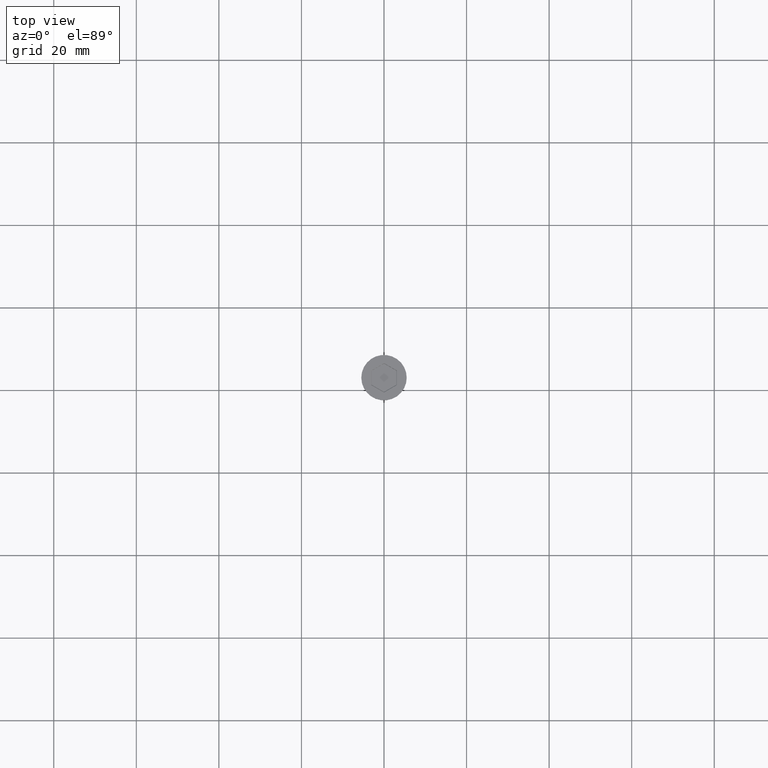
[diagram: clean part render]
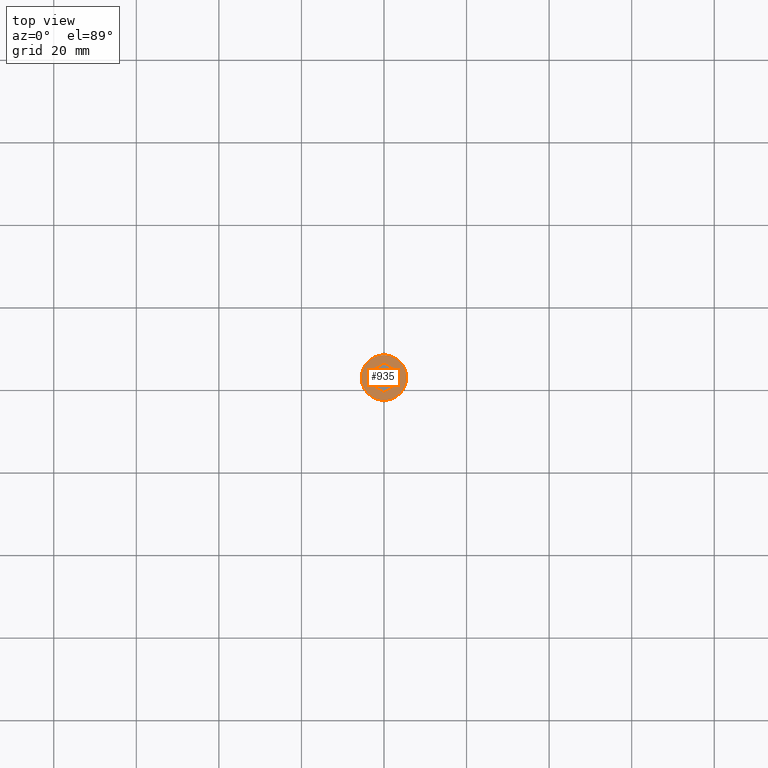
[diagram: same view with one face highlighted and labeled with its STEP entity id]
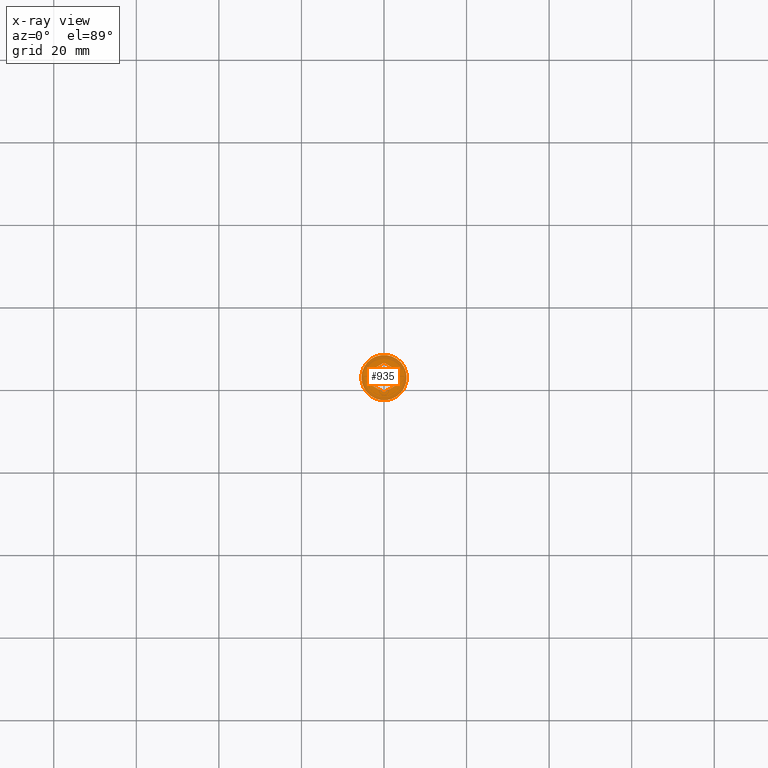
[diagram: x-ray of the same camera — body ghosted, the highlighted face saturated]
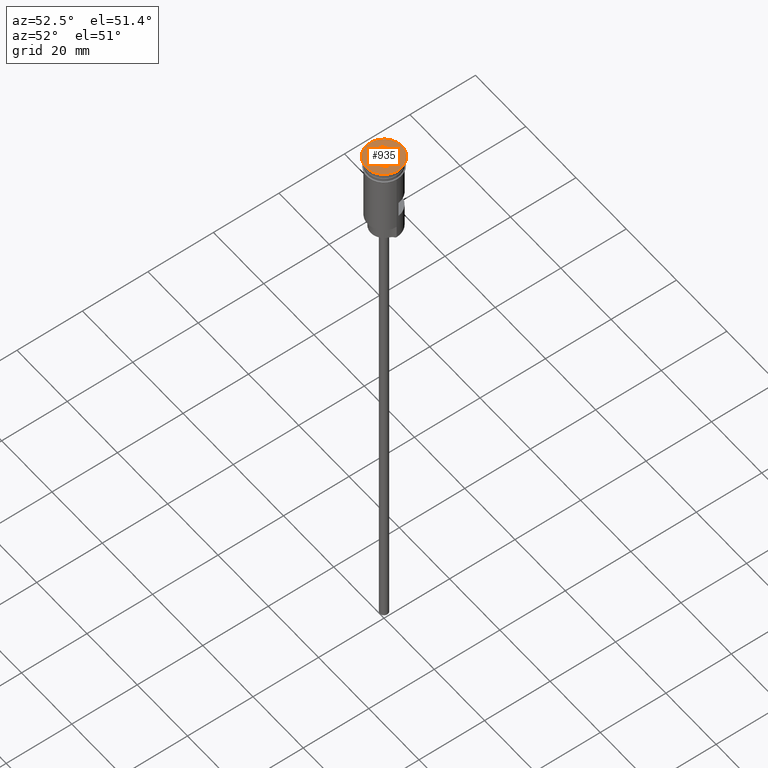
[diagram: same view with one face highlighted and labeled with its STEP entity id]
A machine part, top view. The second image highlights one B-rep face of the part: STEP entity #935.
The next image is the same camera in x-ray: the body ghosted, the highlighted face saturated — about 0% of this face is hidden behind the body in this view.
A second angle (auxiliary view) of the same face is appended — the face is thin or edge-on in the first view.
In plain terms, the highlighted planar face has unit normal (0, -0, 1).
Its self-contained STEP definition (entity closure, byte-faithful):
#25 = LINE ( 'NONE', #1150, #372 ) ;
#33 = DIRECTION ( 'NONE',  ( 0.8660254037844388186, -0.4999999999999997780, 0.000000000000000000 ) ) ;
#68 = EDGE_CURVE ( 'NONE', #468, #1204, #1472, .T. ) ;
#85 = DIRECTION ( 'NONE',  ( 1.000000000000000000, 0.000000000000000000, 0.000000000000000000 ) ) ;
#96 = EDGE_CURVE ( 'NONE', #1204, #952, #503, .T. ) ;
#99 = VECTOR ( 'NONE', #199, 1000.000000000000000 ) ;
#101 = DIRECTION ( 'NONE',  ( -0.000000000000000000, -0.000000000000000000, 1.000000000000000000 ) ) ;
#124 = EDGE_CURVE ( 'NONE', #1080, #1243, #270, .T. ) ;
#137 = ORIENTED_EDGE ( 'NONE', *, *, #68, .T. ) ;
#141 = ORIENTED_EDGE ( 'NONE', *, *, #96, .T. ) ;
#148 = CARTESIAN_POINT ( 'NONE',  ( -1.958864205101993824E-16, -3.579571668975658927, 0.000000000000000000 ) ) ;
#199 = DIRECTION ( 'NONE',  ( -0.8660254037844387076, 0.4999999999999998335, 0.000000000000000000 ) ) ;
#238 = VERTEX_POINT ( 'NONE', #148 ) ;
#242 = EDGE_CURVE ( 'NONE', #952, #1080, #25, .T. ) ;
#264 = CIRCLE ( 'NONE', #882, 5.500000000000000000 ) ;
#270 = LINE ( 'NONE', #1225, #1020 ) ;
#277 = EDGE_LOOP ( 'NONE', ( #137, #141, #1328, #338, #1348, #1424 ) ) ;
#338 = ORIENTED_EDGE ( 'NONE', *, *, #124, .T. ) ;
#356 = CARTESIAN_POINT ( 'NONE',  ( 3.099999999999982769, -1.789785834487828353, 0.000000000000000000 ) ) ;
#372 = VECTOR ( 'NONE', #33, 1000.000000000000114 ) ;
#377 = CARTESIAN_POINT ( 'NONE',  ( -3.099999999999983213, 1.732050807568876971, 0.000000000000000000 ) ) ;
#438 = EDGE_LOOP ( 'NONE', ( #648, #589 ) ) ;
#468 = VERTEX_POINT ( 'NONE', #585 ) ;
#489 = CARTESIAN_POINT ( 'NONE',  ( -0.04999999999999187039, 3.550704155516183125, 0.000000000000000000 ) ) ;
#503 = LINE ( 'NONE', #489, #1524 ) ;
#561 = EDGE_CURVE ( 'NONE', #238, #468, #1277, .T. ) ;
#581 = CARTESIAN_POINT ( 'NONE',  ( 3.099999999999983213, 1.789785834487831462, 0.000000000000000000 ) ) ;
#585 = CARTESIAN_POINT ( 'NONE',  ( -3.099999999999983213, -1.789785834487829241, 0.000000000000000000 ) ) ;
#589 = ORIENTED_EDGE ( 'NONE', *, *, #777, .T. ) ;
#607 = EDGE_CURVE ( 'NONE', #1243, #238, #820, .T. ) ;
#648 = ORIENTED_EDGE ( 'NONE', *, *, #800, .T. ) ;
#654 = DIRECTION ( 'NONE',  ( 0.000000000000000000, -0.000000000000000000, 1.000000000000000000 ) ) ;
#701 = CARTESIAN_POINT ( 'NONE',  ( 0.04999999999999141936, -3.550704155516182237, 0.000000000000000000 ) ) ;
#735 = VECTOR ( 'NONE', #1184, 1000.000000000000114 ) ;
#741 = DIRECTION ( 'NONE',  ( -0.000000000000000000, -0.000000000000000000, 1.000000000000000000 ) ) ;
#751 = DIRECTION ( 'NONE',  ( -1.251928832280966188E-16, -1.000000000000000000, 0.000000000000000000 ) ) ;
#752 = FACE_OUTER_BOUND ( 'NONE', #438, .T. ) ;
#777 = EDGE_CURVE ( 'NONE', #1581, #1268, #264, .T. ) ;
#780 = PLANE ( 'NONE',  #1444 ) ;
#800 = EDGE_CURVE ( 'NONE', #1268, #1581, #837, .T. ) ;
#820 = LINE ( 'NONE', #701, #735 ) ;
#837 = CIRCLE ( 'NONE', #1041, 5.500000000000000000 ) ;
#850 = CARTESIAN_POINT ( 'NONE',  ( 0.000000000000000000, 0.000000000000000000, 0.000000000000000000 ) ) ;
#867 = DIRECTION ( 'NONE',  ( 0.000000000000000000, 1.000000000000000000, 0.000000000000000000 ) ) ;
#882 = AXIS2_PLACEMENT_3D ( 'NONE', #850, #741, #85 ) ;
#935 = ADVANCED_FACE ( 'NONE', ( #1257, #752 ), #780, .T. ) ;
#944 = CARTESIAN_POINT ( 'NONE',  ( -3.049999999999991385, -1.818653347947305932, 0.000000000000000000 ) ) ;
#952 = VERTEX_POINT ( 'NONE', #1017 ) ;
#1017 = CARTESIAN_POINT ( 'NONE',  ( 6.103073414120078086E-16, 3.579571668975660259, 0.000000000000000000 ) ) ;
#1020 = VECTOR ( 'NONE', #751, 1000.000000000000000 ) ;
#1041 = AXIS2_PLACEMENT_3D ( 'NONE', #1078, #101, #1470 ) ;
#1078 = CARTESIAN_POINT ( 'NONE',  ( 0.000000000000000000, 0.000000000000000000, 0.000000000000000000 ) ) ;
#1080 = VERTEX_POINT ( 'NONE', #581 ) ;
#1103 = CARTESIAN_POINT ( 'NONE',  ( 5.500000000000000000, 0.000000000000000000, 0.000000000000000000 ) ) ;
#1137 = DIRECTION ( 'NONE',  ( 1.000000000000000000, 0.000000000000000000, 0.000000000000000000 ) ) ;
#1144 = CARTESIAN_POINT ( 'NONE',  ( 0.000000000000000000, 0.000000000000000000, 0.000000000000000000 ) ) ;
#1150 = CARTESIAN_POINT ( 'NONE',  ( 3.049999999999991829, 1.818653347947307708, 0.000000000000000000 ) ) ;
#1184 = DIRECTION ( 'NONE',  ( -0.8660254037844385966, -0.5000000000000001110, 0.000000000000000000 ) ) ;
#1204 = VERTEX_POINT ( 'NONE', #1453 ) ;
#1225 = CARTESIAN_POINT ( 'NONE',  ( 3.099999999999982769, -1.732050807568876083, 0.000000000000000000 ) ) ;
#1243 = VERTEX_POINT ( 'NONE', #356 ) ;
#1257 = FACE_BOUND ( 'NONE', #277, .T. ) ;
#1268 = VERTEX_POINT ( 'NONE', #1103 ) ;
#1277 = LINE ( 'NONE', #944, #99 ) ;
#1308 = VECTOR ( 'NONE', #867, 1000.000000000000000 ) ;
#1328 = ORIENTED_EDGE ( 'NONE', *, *, #242, .T. ) ;
#1348 = ORIENTED_EDGE ( 'NONE', *, *, #607, .T. ) ;
#1424 = ORIENTED_EDGE ( 'NONE', *, *, #561, .T. ) ;
#1444 = AXIS2_PLACEMENT_3D ( 'NONE', #1144, #654, #1137 ) ;
#1453 = CARTESIAN_POINT ( 'NONE',  ( -3.099999999999983213, 1.789785834487829908, 0.000000000000000000 ) ) ;
#1470 = DIRECTION ( 'NONE',  ( 1.000000000000000000, 0.000000000000000000, 0.000000000000000000 ) ) ;
#1472 = LINE ( 'NONE', #377, #1308 ) ;
#1497 = DIRECTION ( 'NONE',  ( 0.8660254037844387076, 0.4999999999999998890, 0.000000000000000000 ) ) ;
#1517 = CARTESIAN_POINT ( 'NONE',  ( -5.500000000000000000, 6.735557395310442023E-16, 0.000000000000000000 ) ) ;
#1524 = VECTOR ( 'NONE', #1497, 1000.000000000000000 ) ;
#1581 = VERTEX_POINT ( 'NONE', #1517 ) ;